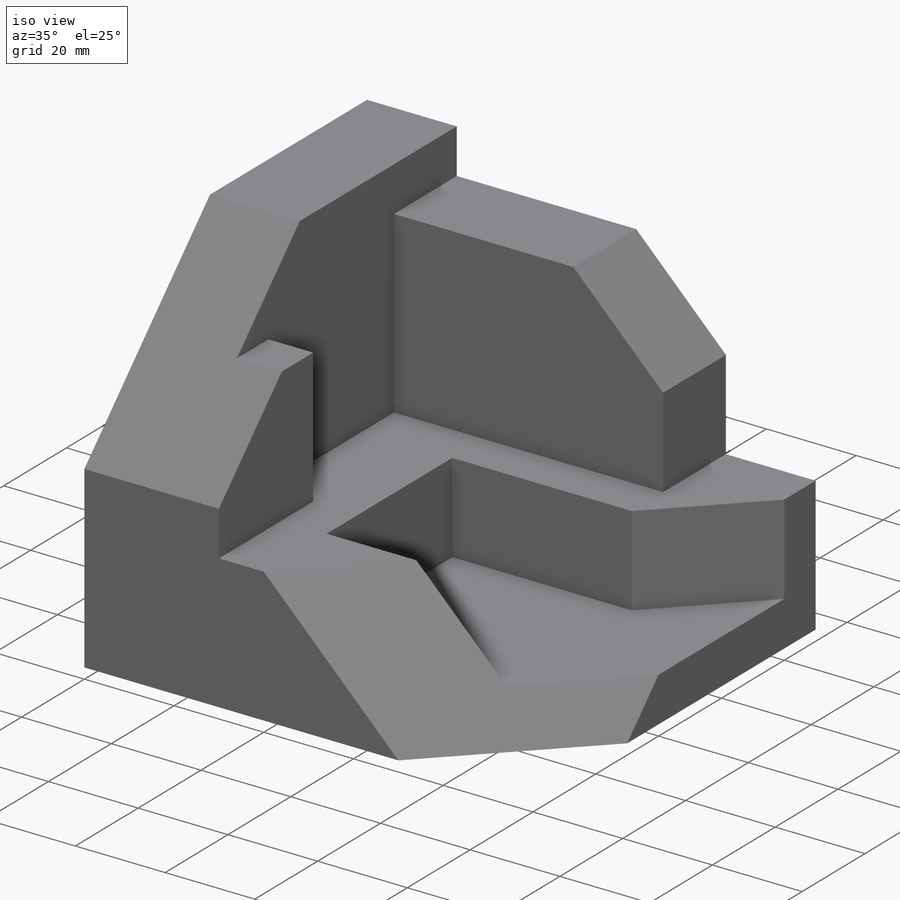
[diagram: iso view]
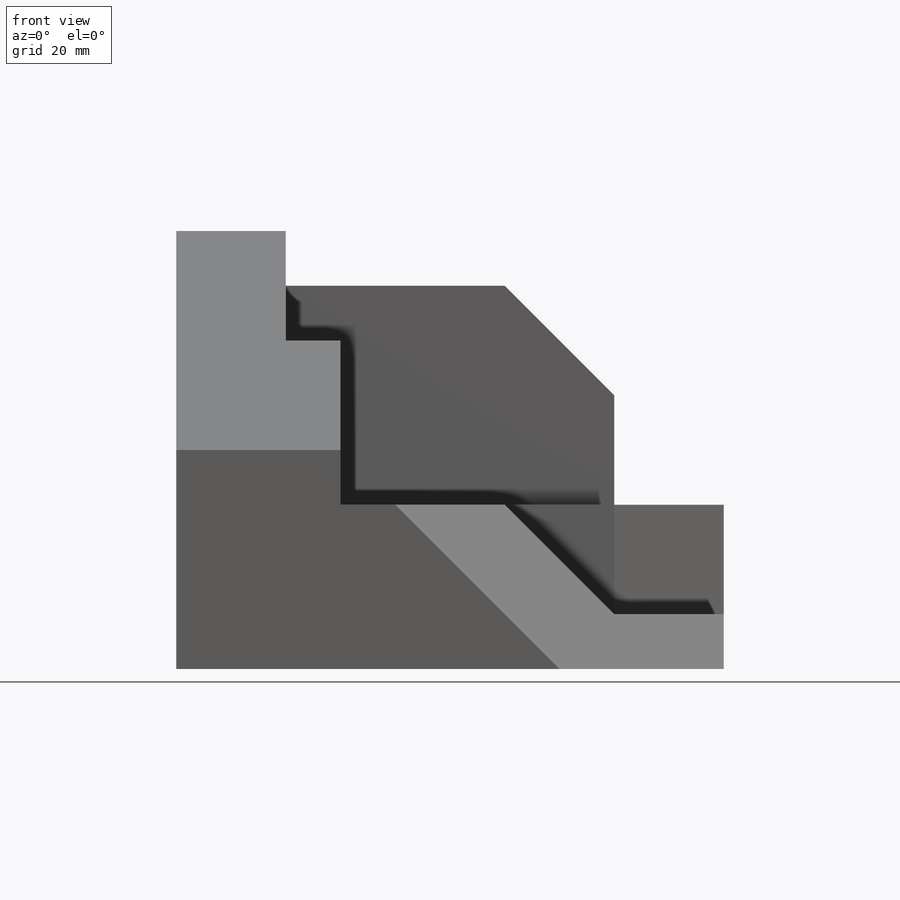
[diagram: front view]
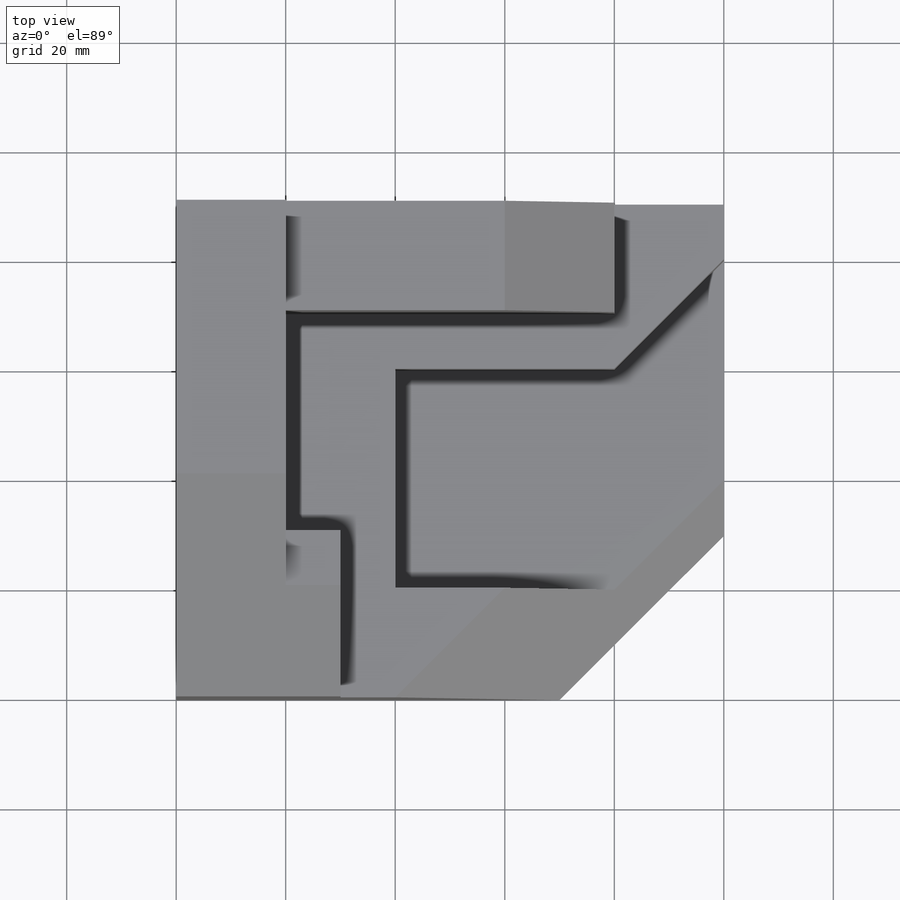
[diagram: top view]
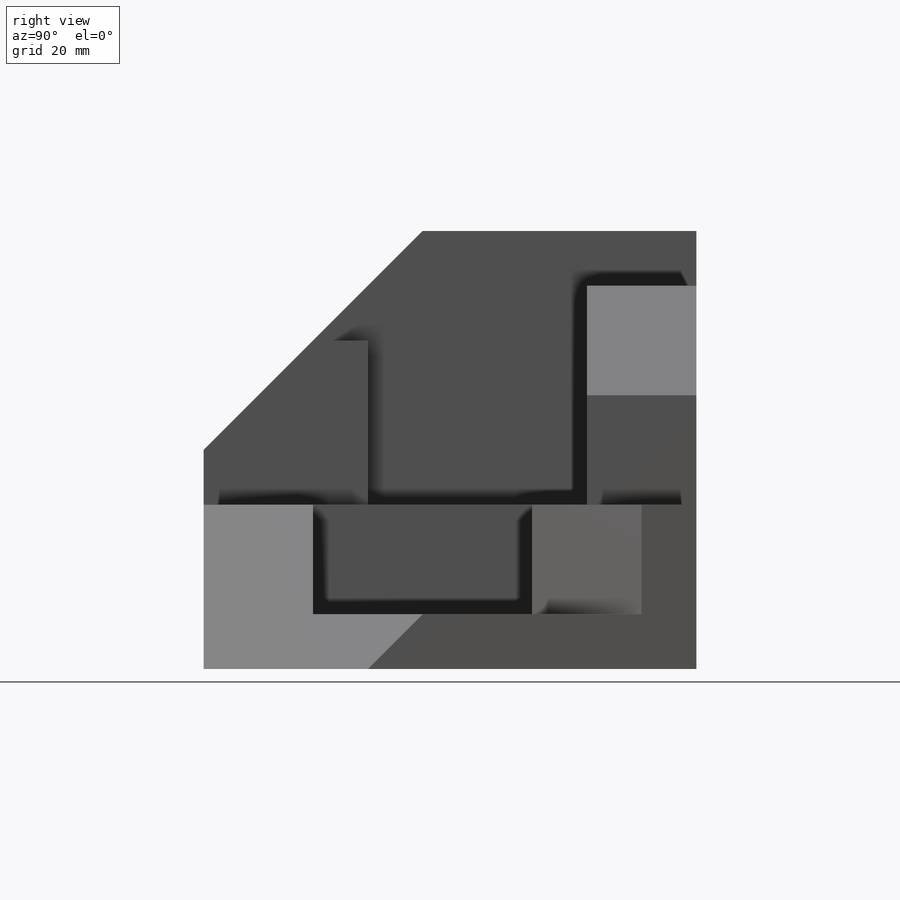
[diagram: right view]
SOLIDWORKS PART (.sldprt)
format: sldprt  version: not decoded by parser v0  size: 384,000 bytes
history: native  units: mm
features: sketch x21, cut_extrude x16, plane x5, extrude x3, material x1 (+13 scaffold rows collapsed)
feature tree (59):
  scaffold x13  (default folders/planes/origin — collapsed)
  material  "Material <not specified>"
  sketch  "Sketch3"  dims[D1=100.0mm D2=80.0mm]
  extrude  "Boss-Extrude1"  Depth=90mm
  sketch  "Sketch4"  dims[D1=20.0mm D2=10.0mm D3=40.0mm D4=20.0mm D5=20.0mm D6=20.0mm D7=30.0mm]
  cut_extrude  "Cut-Extrude1"  Depth=90mm
  sketch  "Sketch5"  dims[D1=30.0mm D2=30.0mm]
  cut_extrude  "Cut-Extrude2"  Depth=90mm
  sketch  "Sketch7"  dims[D1=40.0mm D2=40.0mm]
  cut_extrude  "Cut-Extrude3"  Depth=90mm
  sketch  "Sketch8"
  cut_extrude  "Cut-Extrude4"  Depth=60mm
  sketch  "Sketch9"  dims[D1=10.0mm D2=30.0mm]
  cut_extrude  "Cut-Extrude5"  Depth=60mm
  sketch  "Sketch10"  dims[D1=10.0mm]
  cut_extrude  "Cut-Extrude6"  Depth=60mm
  sketch  "Sketch11"
  extrude  "Boss-Extrude2"  Depth=20mm
  sketch  "Sketch12"  dims[D1=20.0mm]
  extrude  "Boss-Extrude3"  Depth=40mm
  sketch  "Sketch13"
  cut_extrude  "Cut-Extrude7"  Depth=40mm
  sketch  "Sketch15"
  cut_extrude  "Cut-Extrude8"  Depth=40mm
  sketch  "Sketch16"  dims[D1=10.0mm D2=20.0mm D3=20.0mm D4=40.0mm D5=40.0mm D6=40.0mm D7=20.0mm]
  cut_extrude  "Cut-Extrude9"  Depth=20mm
  plane  "Plane3"  Offset=50mm
  sketch  "Sketch17"  dims[D1=20.0mm D2=20.0mm D3=0.0mm D4=0.0mm]
  cut_extrude  "Cut-Extrude10"  Depth=84mm
  plane  "Plane4"  Offset=10mm
  sketch  "Sketch19"  dims[D1=20.0mm]
  cut_extrude  "Cut-Extrude12"  Depth=20mm
  sketch  "Sketch22"
  cut_extrude  "Cut-Extrude15"  Depth=10mm
  sketch  "Sketch23"  dims[D1=70.0mm D2=30.0mm]
  plane  "Plane5"
  sketch  "Sketch24"
  cut_extrude  "Cut-Extrude17"  Depth=77mm
  plane  "Plane6"
  sketch  "Sketch26"
  cut_extrude  "Cut-Extrude19"  Depth=77mm
  sketch  "Sketch27"
  cut_extrude  "Cut-Extrude20"  Depth=77mm
  sketch  "Sketch29"
  plane  "Plane7"
  sketch  "Sketch30"
  cut_extrude  "Cut-Extrude21"  Depth=77mm
decode coverage: 30 of 40 modeling features carry decoded parameters
note: suppression state not decoded; provenance and decode notes live in map.json
